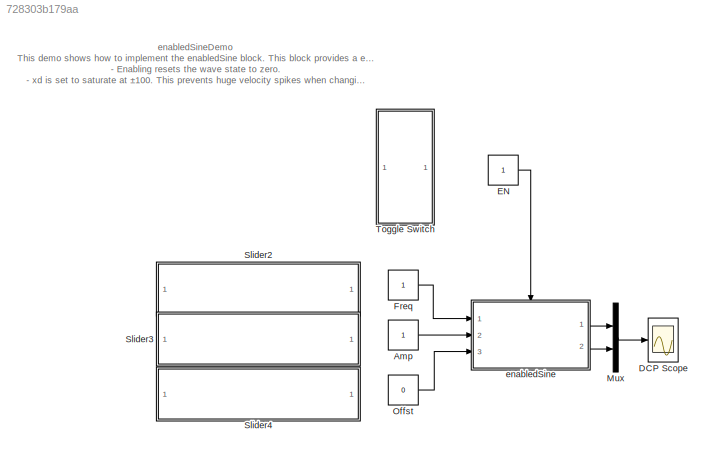
MODEL slx_728303b179aa
KIND model
CONFIG AbsTol = auto
CONFIG EnableMultiTasking = on
CONFIG FixedStep = 0.001
CONFIG MaxStep = auto
CONFIG MinStep = auto
CONFIG RelTol = 1e-3
CONFIG SampleTimeConstraint = Unconstrained
CONFIG Solver = ode5
CONFIG SolverName = ode5
CONFIG StartTime = 0.0
CONFIG StopTime = inf
BLOCK [Constant] Amp
BLOCK [Scope] DCP Scope
  NumInputPorts = 1
  Ports = [1]
  ScopeSpecificationString = Simulink.scopes.TimeScopeBlockCfg('CurrentConfiguration', extmgr.ConfigurationSet(extmgr.Configuration('Core','General UI',true,'FigureColor',[1 1 1]),extmgr.Configuration('Core','Source UI',true),extmgr.Configuration('Sources','WiredSimulink',true),extmgr.Configuration('Visuals','Time Domain',true,'SerializedDisplays',{struct('MinYLimReal','-11.06272','MaxYLimReal','11.06273','YLabelReal','Output...<+1888ch>
BLOCK [Constant] EN
BLOCK [Constant] Freq
BLOCK [Mux] Mux
  DisplayOption = bar
  Inputs = 2
  Ports = [2, 1]
BLOCK [Constant] Offst
  Value = 0
BLOCK [SubSystem] Slider2
  DialogController = hmiCreateDDGDialog
  IsWebBlock = on
  MaskHideContents = on
  Ports = []
  RequestExecContextInheritance = off
  Variant = off
BLOCK [SubSystem] Slider3
  DialogController = hmiCreateDDGDialog
  IsWebBlock = on
  MaskHideContents = on
  Ports = []
  RequestExecContextInheritance = off
  Variant = off
BLOCK [SubSystem] Slider4
  DialogController = hmiCreateDDGDialog
  IsWebBlock = on
  MaskHideContents = on
  Ports = []
  RequestExecContextInheritance = off
  Variant = off
BLOCK [SubSystem] Toggle Switch
  DialogController = hmiCreateDDGDialog
  IsWebBlock = on
  MaskHideContents = on
  Ports = []
  RequestExecContextInheritance = off
  Variant = off
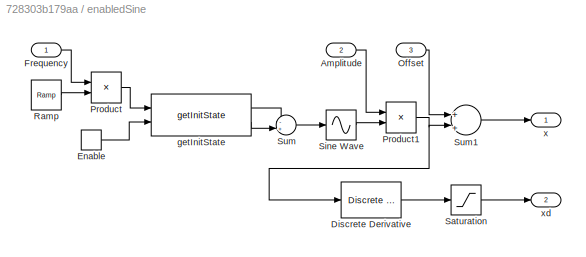
BLOCK [SubSystem] enabledSine
  Ports = [3, 2, 1]
  RequestExecContextInheritance = off
  Variant = off
BLOCK [Inport] enabledSine/Amplitude
  IconDisplay = Port number
  Port = 2
BLOCK [Reference] enabledSine/Discrete Derivative  REF=simulink/Discrete/Discrete Derivative
  Ports = [1, 1]
  SourceBlock = simulink/Discrete/Discrete Derivative
  SourceType = Discrete Derivative
BLOCK [EnablePort] enabledSine/Enable
  Ports = [0, 1]
  ShowOutputPort = on
  StatesWhenEnabling = reset
BLOCK [Inport] enabledSine/Frequency
  IconDisplay = Port number
BLOCK [Inport] enabledSine/Offset
  IconDisplay = Port number
  Port = 3
BLOCK [Product] enabledSine/Product
  InputSameDT = off
  OutDataTypeStr = Inherit: Inherit via internal rule
  Ports = [2, 1]
  RndMeth = Floor
  SaturateOnIntegerOverflow = off
BLOCK [Product] enabledSine/Product1
  InputSameDT = off
  OutDataTypeStr = Inherit: Inherit via internal rule
  Ports = [2, 1]
  RndMeth = Floor
  SaturateOnIntegerOverflow = off
BLOCK [Reference] enabledSine/Ramp  REF=simulink/Sources/Ramp
  Ports = [0, 1]
  SourceBlock = simulink/Sources/Ramp
  SourceType = Ramp
BLOCK [Saturate] enabledSine/Saturation
  InputPortMap = u0
  LowerLimit = -100
  Ports = [1, 1]
  UpperLimit = 100
BLOCK [Sin] enabledSine/Sine Wave
  Ports = [1, 1]
  SampleTime = 0
  TimeSource = Use external signal
BLOCK [Sum] enabledSine/Sum
  IconShape = round
  InputSameDT = off
  Inputs = -+|
  OutDataTypeStr = Inherit: Inherit via internal rule
  Ports = [2, 1]
  SaturateOnIntegerOverflow = off
BLOCK [Sum] enabledSine/Sum1
  InputSameDT = off
  Inputs = +|+
  OutDataTypeStr = Inherit: Inherit via internal rule
  Ports = [2, 1]
  SaturateOnIntegerOverflow = off
BLOCK [Reference] enabledSine/getInitState  REF=dcpctrl/getInitState
  Ports = [2, 2]
  SourceBlock = dcpctrl/getInitState
  SourceType = SubSystem
BLOCK [Outport] enabledSine/x
  IconDisplay = Port number
BLOCK [Outport] enabledSine/xd
  IconDisplay = Port number
  Port = 2
ANNOTATION (root): enabledSineDemo This demo shows how to implement the enabledSine block. This block provides a enable-able sine wave with variable frequency, amplitude and DC offset, which is useful for testing. - Enabling resets the wave state to zero. - xd is set to saturate at ±100. This prevents huge velocity spikes when changing frequency or amplitude, but allows xd to be accurately calculated at max amp/freq...<+8ch>
LINE Amp:1 -> enabledSine:2
LINE EN:1 -> enabledSine:enable
LINE Freq:1 -> enabledSine:1
LINE Mux:1 -> DCP Scope:1
LINE Offst:1 -> enabledSine:3
LINE enabledSine/Amplitude:1 -> enabledSine/Product1:1
LINE enabledSine/Discrete Derivative:1 -> enabledSine/Saturation:1
LINE enabledSine/Enable:1 -> enabledSine/getInitState:2
LINE enabledSine/Frequency:1 -> enabledSine/Product:1
LINE enabledSine/Offset:1 -> enabledSine/Sum1:1
NET enabledSine/Product1:1 -> enabledSine/Discrete Derivative:1, enabledSine/Sum1:2
LINE enabledSine/Product:1 -> enabledSine/getInitState:1
LINE enabledSine/Ramp:1 -> enabledSine/Product:2
LINE enabledSine/Saturation:1 -> enabledSine/xd:1
LINE enabledSine/Sine Wave:1 -> enabledSine/Product1:2
LINE enabledSine/Sum1:1 -> enabledSine/x:1
LINE enabledSine/Sum:1 -> enabledSine/Sine Wave:1
LINE enabledSine/getInitState:1 -> enabledSine/Sum:1
LINE enabledSine/getInitState:2 -> enabledSine/Sum:2
LINE enabledSine:1 -> Mux:1
LINE enabledSine:2 -> Mux:2
note: NET lines group one-source signal fan-out (src -> all destinations, sorted); 1:1 wires keep LINE
